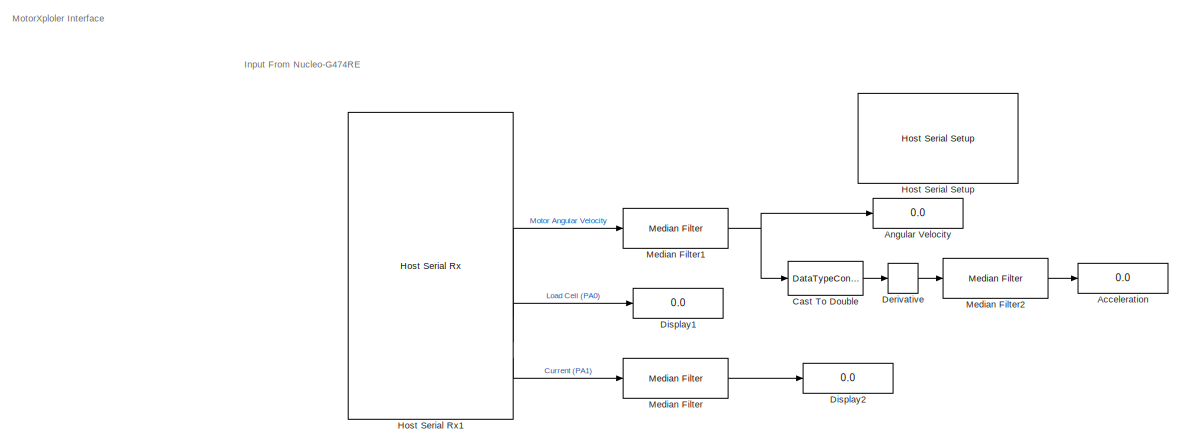
[diagram: root canvas - part 1/2, full width, top band]
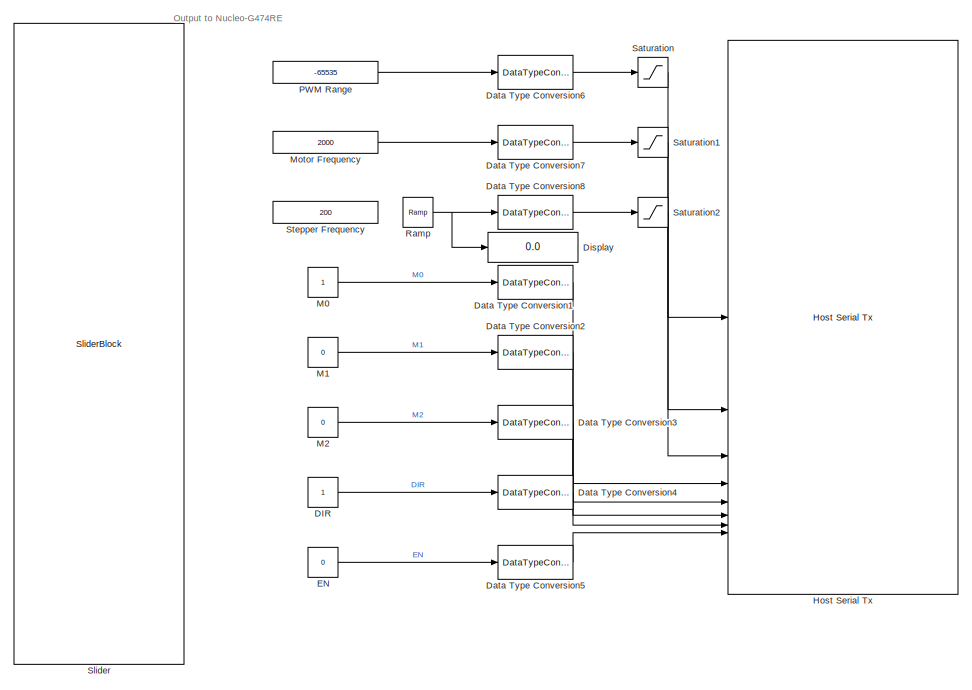
[diagram: root canvas - part 2/2, full width, bottom band]
MODEL slx_91b37dc39386
KIND model
CONFIG AbsTol = auto
CONFIG EnableMultiTasking = off
CONFIG FixedStep = 0.001
CONFIG MaxStep = auto
CONFIG MinStep = auto
CONFIG RelTol = 1e-3
CONFIG SampleTimeConstraint = Unconstrained
CONFIG SolverName = FixedStepAuto
CONFIG StartTime = 0.0
CONFIG StopTime = inf
BLOCK [Display] Acceleration
  Decimation = 1
BLOCK [Display] Angular Velocity
  Decimation = 1
BLOCK [DataTypeConversion] Cast To Double
  OutDataTypeStr = double
  RndMeth = Floor
  SaturateOnIntegerOverflow = off
BLOCK [Constant] DIR
BLOCK [DataTypeConversion] Data Type Conversion1
  RndMeth = Floor
  SaturateOnIntegerOverflow = off
BLOCK [DataTypeConversion] Data Type Conversion2
  RndMeth = Floor
  SaturateOnIntegerOverflow = off
BLOCK [DataTypeConversion] Data Type Conversion3
  RndMeth = Floor
  SaturateOnIntegerOverflow = off
BLOCK [DataTypeConversion] Data Type Conversion4
  RndMeth = Floor
  SaturateOnIntegerOverflow = off
BLOCK [DataTypeConversion] Data Type Conversion5
  RndMeth = Floor
  SaturateOnIntegerOverflow = off
BLOCK [DataTypeConversion] Data Type Conversion6
  RndMeth = Floor
  SaturateOnIntegerOverflow = off
BLOCK [DataTypeConversion] Data Type Conversion7
  RndMeth = Floor
  SaturateOnIntegerOverflow = off
BLOCK [DataTypeConversion] Data Type Conversion8
  RndMeth = Floor
  SaturateOnIntegerOverflow = off
BLOCK [Derivative] Derivative
BLOCK [Display] Display
  Decimation = 1
BLOCK [Display] Display1
  Decimation = 1
BLOCK [Display] Display2
  Decimation = 1
BLOCK [Constant] EN
  Value = 0
BLOCK [Reference] Host Serial Rx1  REF=amg_usbconverter_n_connect_lib/Host Serial Rx
  SourceBlock = amg_usbconverter_n_connect_lib/Host Serial Rx
  SourceProductName = aMG USB Converter N
  SourceType = amg_usbconverter_n_connect
BLOCK [Reference] Host Serial Setup  REF=amg_usbconverter_n_connect_lib/Host Serial Setup
  SourceBlock = amg_usbconverter_n_connect_lib/Host Serial Setup
  SourceProductName = aMG USB Converter N
  SourceType = amg_usbconverter_n_connect
BLOCK [Reference] Host Serial Tx  REF=amg_usbconverter_n_connect_lib/Host Serial Tx
  SourceBlock = amg_usbconverter_n_connect_lib/Host Serial Tx
  SourceProductName = aMG USB Converter N
  SourceType = amg_usbconverter_n_connect
BLOCK [Constant] M0
BLOCK [Constant] M1
  Value = 0
BLOCK [Constant] M2
  Value = 0
BLOCK [Reference] Median Filter  REF=dspstat3/Median
Filter
  LibrarySourceBlock = dspfdesign/Median\nFilter
  SourceBlock = dspstat3/Median\nFilter
  SourceType = dsp.simulink.MedianFilter
BLOCK [Reference] Median Filter1  REF=dspstat3/Median
Filter
  LibrarySourceBlock = dspfdesign/Median\nFilter
  SourceBlock = dspstat3/Median\nFilter
  SourceType = dsp.simulink.MedianFilter
BLOCK [Reference] Median Filter2  REF=dspstat3/Median
Filter
  LibrarySourceBlock = dspfdesign/Median\nFilter
  SourceBlock = dspstat3/Median\nFilter
  SourceType = dsp.simulink.MedianFilter
BLOCK [Constant] Motor Frequency
  OutDataTypeStr = single
  Value = 2000
BLOCK [Constant] PWM Range
  OutDataTypeStr = single
  Value = -65535
BLOCK [Reference] Ramp  REF=simulink/Sources/Ramp
  SourceBlock = simulink/Sources/Ramp
  SourceType = Ramp
BLOCK [Saturate] Saturation
  LowerLimit = -65535
  UpperLimit = 65535
BLOCK [Saturate] Saturation1
  LowerLimit = 0
  UpperLimit = 20000
BLOCK [Saturate] Saturation2
  LowerLimit = 0
  UpperLimit = inf
BLOCK [SliderBlock] Slider
  NameLocation = left
  ScaleMax = 65535
  ScaleMin = -65535
BLOCK [Constant] Stepper Frequency
  OutDataTypeStr = single
  Value = 200
ANNOTATION (root): Input From Nucleo-G474RE
ANNOTATION (root): MotorXploler Interface
ANNOTATION (root): Output to Nucleo-G474RE
LINE Cast To Double:1 -> Derivative:1
LINE DIR:1 -> Data Type Conversion4:1
LINE Data Type Conversion1:1 -> Host Serial Tx:4
LINE Data Type Conversion2:1 -> Host Serial Tx:5
LINE Data Type Conversion3:1 -> Host Serial Tx:6
LINE Data Type Conversion4:1 -> Host Serial Tx:7
LINE Data Type Conversion5:1 -> Host Serial Tx:8
LINE Data Type Conversion6:1 -> Saturation:1
LINE Data Type Conversion7:1 -> Saturation1:1
LINE Data Type Conversion8:1 -> Saturation2:1
LINE Derivative:1 -> Median Filter2:1
LINE EN:1 -> Data Type Conversion5:1
LINE Host Serial Rx1:2 -> Median Filter1:1
LINE Host Serial Rx1:3 -> Display1:1
LINE Host Serial Rx1:4 -> Median Filter:1
LINE M0:1 -> Data Type Conversion1:1
LINE M1:1 -> Data Type Conversion2:1
LINE M2:1 -> Data Type Conversion3:1
NET Median Filter1:1 -> Angular Velocity:1, Cast To Double:1
LINE Median Filter2:1 -> Acceleration:1
LINE Median Filter:1 -> Display2:1
LINE Motor Frequency:1 -> Data Type Conversion7:1
LINE PWM Range:1 -> Data Type Conversion6:1
NET Ramp:1 -> Data Type Conversion8:1, Display:1
LINE Saturation1:1 -> Host Serial Tx:2
LINE Saturation2:1 -> Host Serial Tx:3
LINE Saturation:1 -> Host Serial Tx:1
note: NET lines group one-source signal fan-out (src -> all destinations, sorted); 1:1 wires keep LINE
